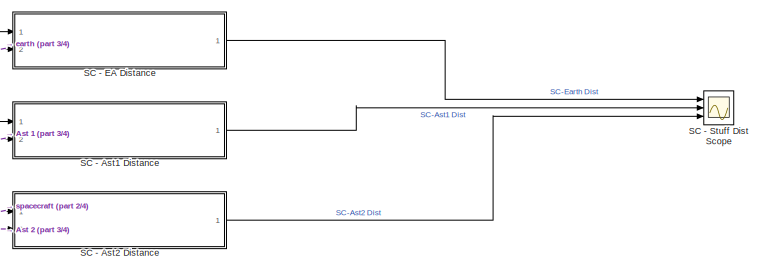
[diagram: root canvas - part 1/4, top right region]
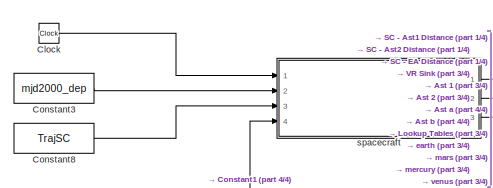
[diagram: root canvas - part 2/4, top left region]
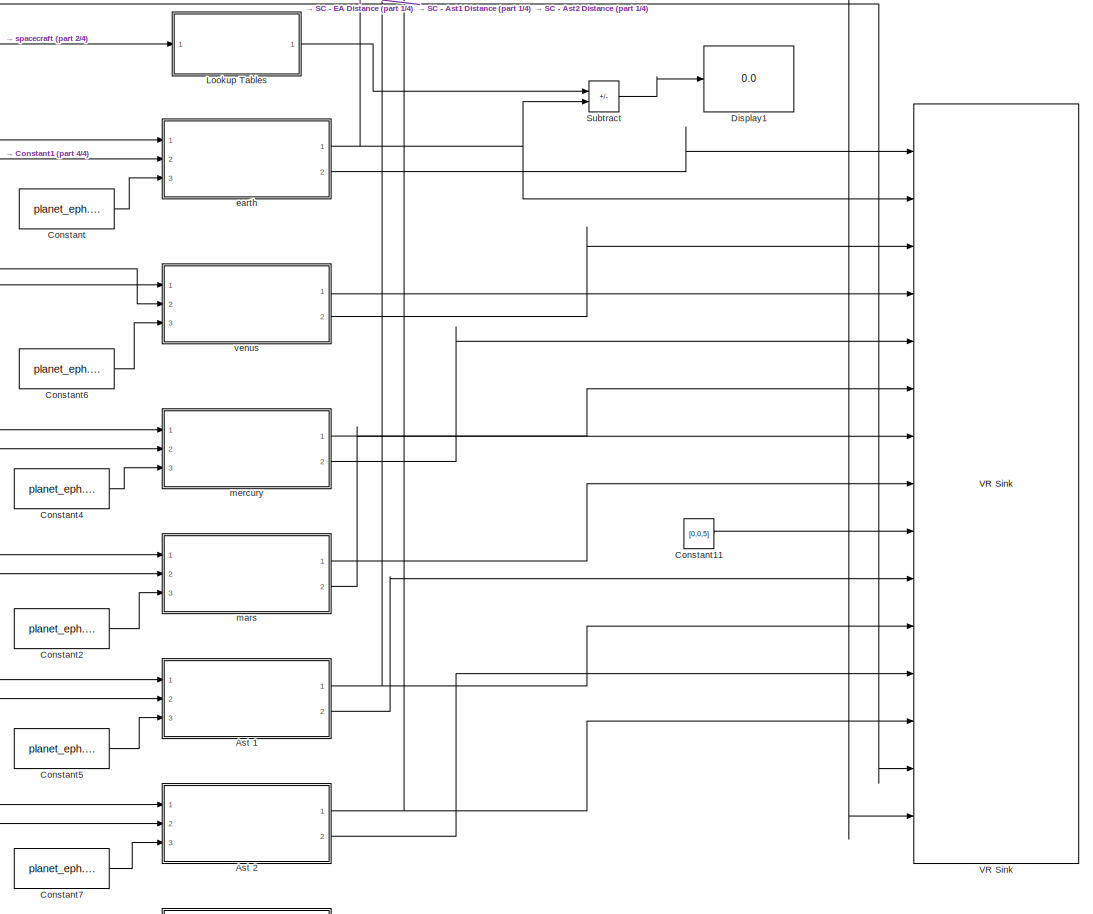
[diagram: root canvas - part 3/4, central region]
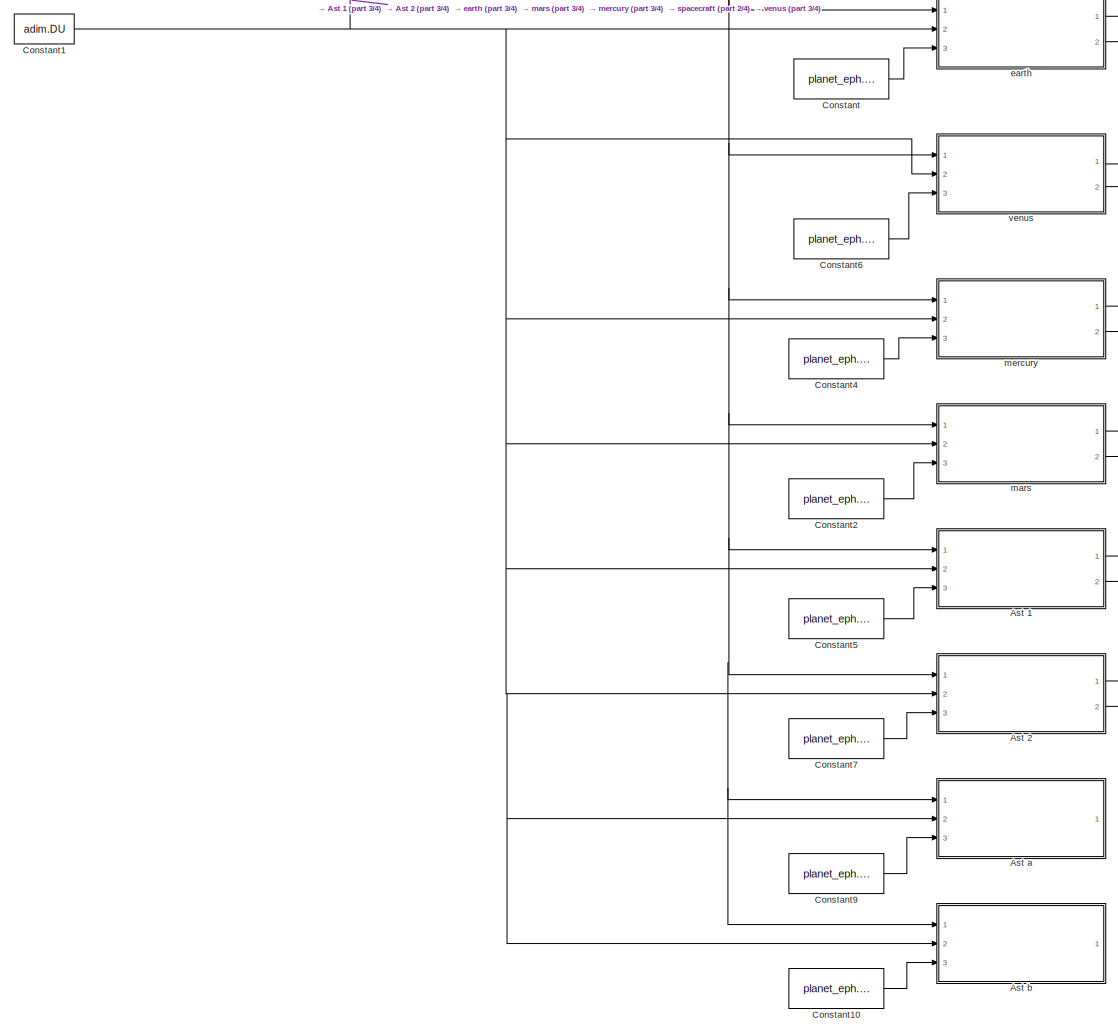
[diagram: root canvas - part 4/4, middle left region]
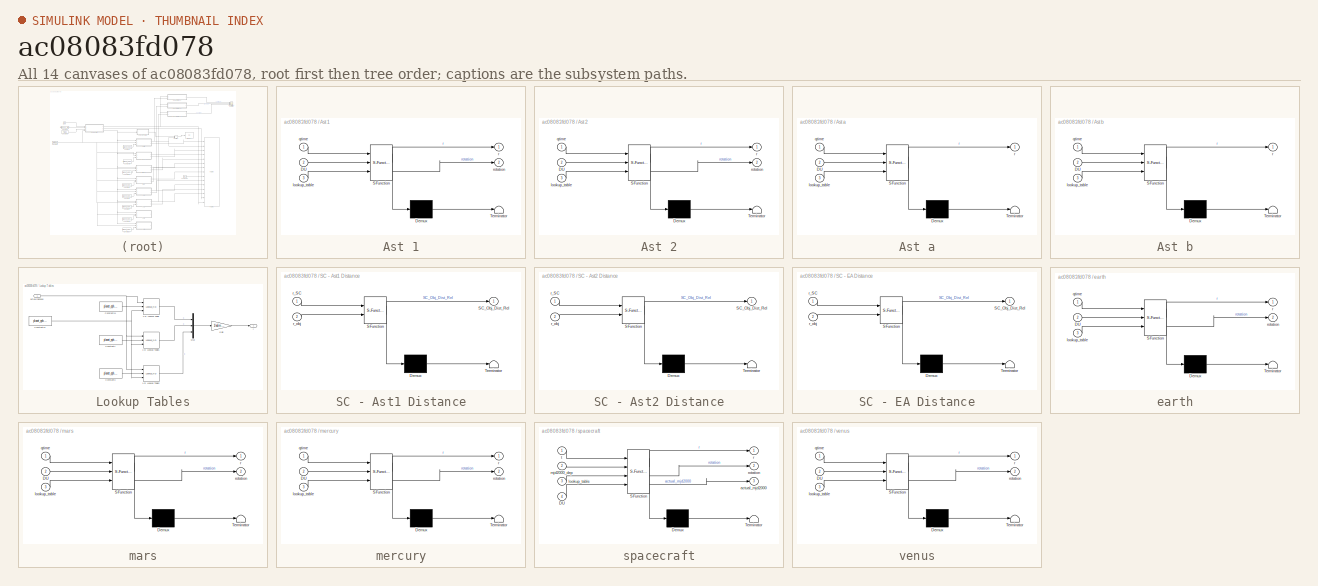
[diagram: thumbnail index - all 14 canvases of the model, root first then tree order]
MODEL slx_ac08083fd078
KIND model
CONFIG AbsTol = auto
CONFIG EnableMultiTasking = off
CONFIG FixedStep = auto
CONFIG MaxStep = auto
CONFIG MinStep = auto
CONFIG RelTol = 1e-3
CONFIG SampleTimeConstraint = Unconstrained
CONFIG SolverName = FixedStepAuto
CONFIG StartTime = 0.0
CONFIG StopTime = sim_time
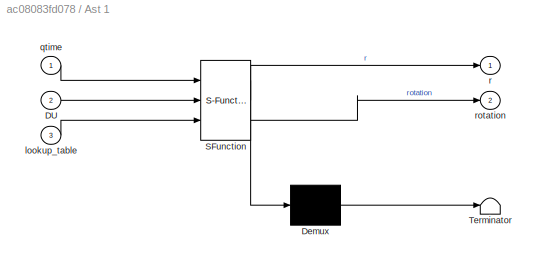
BLOCK [SubSystem] Ast 1
  ErrorFcn = Stateflow.Translate.translate
  PermitHierarchicalResolution = ExplicitOnly
  Ports = [3, 2]
  RequestExecContextInheritance = off
  SFBlockType = MATLAB Function
  TreatAsAtomicUnit = on
BLOCK [Demux] Ast 1/ Demux 
  Outputs = 1
  Ports = [1, 1]
BLOCK [S-Function] Ast 1/ SFunction 
  EnableBusSupport = on
  FunctionName = sf_sfun
  PortCounts = [3 3]
  Ports = [3, 3]
  SFcnIsStateOwnerBlock = off
  SFunctionDeploymentMode = off
  Tag = Stateflow S-Function 6
BLOCK [Terminator] Ast 1/ Terminator 
BLOCK [Inport] Ast 1/DU
  Port = 2
BLOCK [Inport] Ast 1/lookup_table
  Port = 3
BLOCK [Inport] Ast 1/qtime
BLOCK [Outport] Ast 1/r
BLOCK [Outport] Ast 1/rotation
  Port = 2
BLOCK [SubSystem] Ast 2
  ErrorFcn = Stateflow.Translate.translate
  PermitHierarchicalResolution = ExplicitOnly
  Ports = [3, 2]
  RequestExecContextInheritance = off
  SFBlockType = MATLAB Function
  TreatAsAtomicUnit = on
BLOCK [Demux] Ast 2/ Demux 
  Outputs = 1
  Ports = [1, 1]
BLOCK [S-Function] Ast 2/ SFunction 
  EnableBusSupport = on
  FunctionName = sf_sfun
  PortCounts = [3 3]
  Ports = [3, 3]
  SFcnIsStateOwnerBlock = off
  SFunctionDeploymentMode = off
  Tag = Stateflow S-Function 7
BLOCK [Terminator] Ast 2/ Terminator 
BLOCK [Inport] Ast 2/DU
  Port = 2
BLOCK [Inport] Ast 2/lookup_table
  Port = 3
BLOCK [Inport] Ast 2/qtime
BLOCK [Outport] Ast 2/r
BLOCK [Outport] Ast 2/rotation
  Port = 2
BLOCK [SubSystem] Ast a
  Commented = on
  ErrorFcn = Stateflow.Translate.translate
  PermitHierarchicalResolution = ExplicitOnly
  Ports = [3, 1]
  RequestExecContextInheritance = off
  SFBlockType = MATLAB Function
  TreatAsAtomicUnit = on
BLOCK [Demux] Ast a/ Demux 
  Outputs = 1
  Ports = [1, 1]
BLOCK [S-Function] Ast a/ SFunction 
  EnableBusSupport = on
  FunctionName = sf_sfun
  PortCounts = [3 2]
  Ports = [3, 2]
  SFcnIsStateOwnerBlock = off
  SFunctionDeploymentMode = off
  Tag = Stateflow S-Function 8
BLOCK [Terminator] Ast a/ Terminator 
BLOCK [Inport] Ast a/DU
  Port = 2
BLOCK [Inport] Ast a/lookup_table
  Port = 3
BLOCK [Inport] Ast a/qtime
BLOCK [Outport] Ast a/r
BLOCK [SubSystem] Ast b
  Commented = on
  ErrorFcn = Stateflow.Translate.translate
  PermitHierarchicalResolution = ExplicitOnly
  Ports = [3, 1]
  RequestExecContextInheritance = off
  SFBlockType = MATLAB Function
  TreatAsAtomicUnit = on
BLOCK [Demux] Ast b/ Demux 
  Outputs = 1
  Ports = [1, 1]
BLOCK [S-Function] Ast b/ SFunction 
  EnableBusSupport = on
  FunctionName = sf_sfun
  PortCounts = [3 2]
  Ports = [3, 2]
  SFcnIsStateOwnerBlock = off
  SFunctionDeploymentMode = off
  Tag = Stateflow S-Function 9
BLOCK [Terminator] Ast b/ Terminator 
BLOCK [Inport] Ast b/DU
  Port = 2
BLOCK [Inport] Ast b/lookup_table
  Port = 3
BLOCK [Inport] Ast b/qtime
BLOCK [Outport] Ast b/r
BLOCK [Clock] Clock
BLOCK [Constant] Constant
  Value = planet_eph.EA
BLOCK [Constant] Constant1
  Value = adim.DU
BLOCK [Constant] Constant10
  Commented = on
  Value = planet_eph.Ab
BLOCK [Constant] Constant11
  Value = [0,0,5]
BLOCK [Constant] Constant2
  Value = planet_eph.MA
BLOCK [Constant] Constant3
  Value = mjd2000_dep
BLOCK [Constant] Constant4
  Value = planet_eph.ME
BLOCK [Constant] Constant5
  Value = planet_eph.A1
BLOCK [Constant] Constant6
  Value = planet_eph.VE
BLOCK [Constant] Constant7
  Value = planet_eph.A2
BLOCK [Constant] Constant8
  Value = TrajSC
BLOCK [Constant] Constant9
  Commented = on
  Value = planet_eph.Aa
BLOCK [Display] Display1
  Commented = on
  Decimation = 1
  Ports = [1]
BLOCK [SubSystem] Lookup Tables
  Commented = on
  Ports = [1, 1]
  RequestExecContextInheritance = off
BLOCK [Lookup_n-D] Lookup Tables/1-D Lookup Table
  BreakpointsForDimension1 = [7]
  BreakpointsForDimension1Source = Input port
  InputPortMap = u0,p221,p5
  InternalRulePriority = Speed
  NumberOfTableDimensions = 1
  Ports = [3, 1]
  RndMeth = Simplest
  Table = tanh([-5:5])
  TableSource = Input port
BLOCK [Lookup_n-D] Lookup Tables/1-D Lookup Table1
  BreakpointsForDimension1 = [7]
  BreakpointsForDimension1Source = Input port
  InputPortMap = u0,p221,p5
  InternalRulePriority = Speed
  NumberOfTableDimensions = 1
  Ports = [3, 1]
  RndMeth = Simplest
  Table = tanh([-5:5])
  TableSource = Input port
BLOCK [Lookup_n-D] Lookup Tables/1-D Lookup Table2
  BreakpointsForDimension1 = [7]
  BreakpointsForDimension1Source = Input port
  InputPortMap = u0,p221,p5
  InternalRulePriority = Speed
  NumberOfTableDimensions = 1
  Ports = [3, 1]
  RndMeth = Simplest
  Table = tanh([-5:5])
  TableSource = Input port
BLOCK [Constant] Lookup Tables/Constant1
  Value = planet_eph.EA(:,2)
BLOCK [Constant] Lookup Tables/Constant11
  Value = planet_eph.EA(:,1)
BLOCK [Constant] Lookup Tables/Constant12
  Value = planet_eph.EA(:,7)
BLOCK [Constant] Lookup Tables/Constant3
  Value = planet_eph.EA(:,3)
BLOCK [Gain] Lookup Tables/Gain
  Gain = 1/adim.DU
BLOCK [Mux] Lookup Tables/Mux
  DisplayOption = bar
  Inputs = 3
  Ports = [3, 1]
BLOCK [Inport] Lookup Tables/actual mjd2000
BLOCK [Outport] Lookup Tables/r
BLOCK [SubSystem] SC - Ast1 Distance
  ErrorFcn = Stateflow.Translate.translate
  PermitHierarchicalResolution = ExplicitOnly
  Ports = [2, 1]
  RequestExecContextInheritance = off
  SFBlockType = MATLAB Function
  TreatAsAtomicUnit = on
BLOCK [Demux] SC - Ast1 Distance/ Demux 
  Outputs = 1
  Ports = [1, 1]
BLOCK [S-Function] SC - Ast1 Distance/ SFunction 
  EnableBusSupport = on
  FunctionName = sf_sfun
  PortCounts = [2 2]
  Ports = [2, 2]
  SFcnIsStateOwnerBlock = off
  SFunctionDeploymentMode = off
  Tag = Stateflow S-Function 11
BLOCK [Terminator] SC - Ast1 Distance/ Terminator 
BLOCK [Outport] SC - Ast1 Distance/SC_Obj_Dist_Rel
BLOCK [Inport] SC - Ast1 Distance/r_SC
BLOCK [Inport] SC - Ast1 Distance/r_obj
  Port = 2
BLOCK [SubSystem] SC - Ast2 Distance
  ErrorFcn = Stateflow.Translate.translate
  PermitHierarchicalResolution = ExplicitOnly
  Ports = [2, 1]
  RequestExecContextInheritance = off
  SFBlockType = MATLAB Function
  TreatAsAtomicUnit = on
BLOCK [Demux] SC - Ast2 Distance/ Demux 
  Outputs = 1
  Ports = [1, 1]
BLOCK [S-Function] SC - Ast2 Distance/ SFunction 
  EnableBusSupport = on
  FunctionName = sf_sfun
  PortCounts = [2 2]
  Ports = [2, 2]
  SFcnIsStateOwnerBlock = off
  SFunctionDeploymentMode = off
  Tag = Stateflow S-Function 12
BLOCK [Terminator] SC - Ast2 Distance/ Terminator 
BLOCK [Outport] SC - Ast2 Distance/SC_Obj_Dist_Rel
BLOCK [Inport] SC - Ast2 Distance/r_SC
BLOCK [Inport] SC - Ast2 Distance/r_obj
  Port = 2
BLOCK [SubSystem] SC - EA Distance
  ErrorFcn = Stateflow.Translate.translate
  PermitHierarchicalResolution = ExplicitOnly
  Ports = [2, 1]
  RequestExecContextInheritance = off
  SFBlockType = MATLAB Function
  TreatAsAtomicUnit = on
BLOCK [Demux] SC - EA Distance/ Demux 
  Outputs = 1
  Ports = [1, 1]
BLOCK [S-Function] SC - EA Distance/ SFunction 
  EnableBusSupport = on
  FunctionName = sf_sfun
  PortCounts = [2 2]
  Ports = [2, 2]
  SFcnIsStateOwnerBlock = off
  SFunctionDeploymentMode = off
  Tag = Stateflow S-Function 10
BLOCK [Terminator] SC - EA Distance/ Terminator 
BLOCK [Outport] SC - EA Distance/SC_Obj_Dist_Rel
BLOCK [Inport] SC - EA Distance/r_SC
BLOCK [Inport] SC - EA Distance/r_obj
  Port = 2
BLOCK [Scope] SC - Stuff Dist Scope
  Floating = off
  NumInputPorts = 3
  Ports = [3]
  ScopeSpecificationString = Simulink.scopes.TimeScopeBlockCfg('CurrentConfiguration', extmgr.ConfigurationSet(extmgr.Configuration('Core','General UI',true),extmgr.Configuration('Core','Source UI',true),extmgr.Configuration('Sources','WiredSimulink',true),extmgr.Configuration('Visuals','Time Domain',true,'SerializedDisplays',{struct('MinYLimReal','-0.28013','MaxYLimReal','2.52117','YLabelReal','','MinYLimMag','0.00000','MaxY...<+1483ch>
BLOCK [Sum] Subtract
  Commented = on
  IconShape = rectangular
  Inputs = +-
  Ports = [2, 1]
BLOCK [Reference] VR Sink  REF=vrlib/VR Sink
  InstantiateOnLoad = on
  Ports = [15]
  SourceBlock = vrlib/VR Sink
  SourceProductBaseCode = SL
  SourceType = Virtual Reality Sink
BLOCK [SubSystem] earth
  ErrorFcn = Stateflow.Translate.translate
  PermitHierarchicalResolution = ExplicitOnly
  Ports = [3, 2]
  RequestExecContextInheritance = off
  SFBlockType = MATLAB Function
  TreatAsAtomicUnit = on
BLOCK [Demux] earth/ Demux 
  Outputs = 1
  Ports = [1, 1]
BLOCK [S-Function] earth/ SFunction 
  EnableBusSupport = on
  FunctionName = sf_sfun
  PortCounts = [3 3]
  Ports = [3, 3]
  SFcnIsStateOwnerBlock = off
  SFunctionDeploymentMode = off
  Tag = Stateflow S-Function 1
BLOCK [Terminator] earth/ Terminator 
BLOCK [Inport] earth/DU
  Port = 2
BLOCK [Inport] earth/lookup_table
  Port = 3
BLOCK [Inport] earth/qtime
BLOCK [Outport] earth/r
BLOCK [Outport] earth/rotation
  Port = 2
BLOCK [SubSystem] mars
  ErrorFcn = Stateflow.Translate.translate
  PermitHierarchicalResolution = ExplicitOnly
  Ports = [3, 2]
  RequestExecContextInheritance = off
  SFBlockType = MATLAB Function
  TreatAsAtomicUnit = on
BLOCK [Demux] mars/ Demux 
  Outputs = 1
  Ports = [1, 1]
BLOCK [S-Function] mars/ SFunction 
  EnableBusSupport = on
  FunctionName = sf_sfun
  PortCounts = [3 3]
  Ports = [3, 3]
  SFcnIsStateOwnerBlock = off
  SFunctionDeploymentMode = off
  Tag = Stateflow S-Function 2
BLOCK [Terminator] mars/ Terminator 
BLOCK [Inport] mars/DU
  Port = 2
BLOCK [Inport] mars/lookup_table
  Port = 3
BLOCK [Inport] mars/qtime
BLOCK [Outport] mars/r
BLOCK [Outport] mars/rotation
  Port = 2
BLOCK [SubSystem] mercury
  ErrorFcn = Stateflow.Translate.translate
  PermitHierarchicalResolution = ExplicitOnly
  Ports = [3, 2]
  RequestExecContextInheritance = off
  SFBlockType = MATLAB Function
  TreatAsAtomicUnit = on
BLOCK [Demux] mercury/ Demux 
  Outputs = 1
  Ports = [1, 1]
BLOCK [S-Function] mercury/ SFunction 
  EnableBusSupport = on
  FunctionName = sf_sfun
  PortCounts = [3 3]
  Ports = [3, 3]
  SFcnIsStateOwnerBlock = off
  SFunctionDeploymentMode = off
  Tag = Stateflow S-Function 3
BLOCK [Terminator] mercury/ Terminator 
BLOCK [Inport] mercury/DU
  Port = 2
BLOCK [Inport] mercury/lookup_table
  Port = 3
BLOCK [Inport] mercury/qtime
BLOCK [Outport] mercury/r
BLOCK [Outport] mercury/rotation
  Port = 2
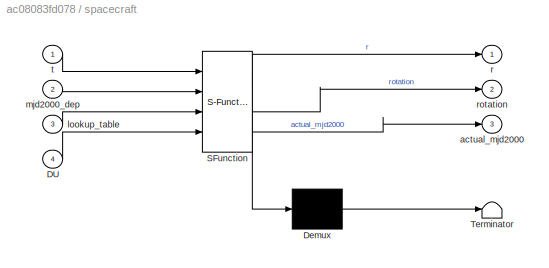
BLOCK [SubSystem] spacecraft
  ErrorFcn = Stateflow.Translate.translate
  PermitHierarchicalResolution = ExplicitOnly
  Ports = [4, 3]
  RequestExecContextInheritance = off
  SFBlockType = MATLAB Function
  TreatAsAtomicUnit = on
BLOCK [Demux] spacecraft/ Demux 
  Outputs = 1
  Ports = [1, 1]
BLOCK [S-Function] spacecraft/ SFunction 
  EnableBusSupport = on
  FunctionName = sf_sfun
  PortCounts = [4 4]
  Ports = [4, 4]
  SFcnIsStateOwnerBlock = off
  SFunctionDeploymentMode = off
  Tag = Stateflow S-Function 5
BLOCK [Terminator] spacecraft/ Terminator 
BLOCK [Inport] spacecraft/DU
  Port = 4
BLOCK [Outport] spacecraft/actual_mjd2000
  Port = 3
BLOCK [Inport] spacecraft/lookup_table
  Port = 3
BLOCK [Inport] spacecraft/mjd2000_dep
  Port = 2
BLOCK [Outport] spacecraft/r
BLOCK [Outport] spacecraft/rotation
  Port = 2
BLOCK [Inport] spacecraft/t
BLOCK [SubSystem] venus
  ErrorFcn = Stateflow.Translate.translate
  PermitHierarchicalResolution = ExplicitOnly
  Ports = [3, 2]
  RequestExecContextInheritance = off
  SFBlockType = MATLAB Function
  TreatAsAtomicUnit = on
BLOCK [Demux] venus/ Demux 
  Outputs = 1
  Ports = [1, 1]
BLOCK [S-Function] venus/ SFunction 
  EnableBusSupport = on
  FunctionName = sf_sfun
  PortCounts = [3 3]
  Ports = [3, 3]
  SFcnIsStateOwnerBlock = off
  SFunctionDeploymentMode = off
  Tag = Stateflow S-Function 4
BLOCK [Terminator] venus/ Terminator 
BLOCK [Inport] venus/DU
  Port = 2
BLOCK [Inport] venus/lookup_table
  Port = 3
BLOCK [Inport] venus/qtime
BLOCK [Outport] venus/r
BLOCK [Outport] venus/rotation
  Port = 2
NET Ast 1:1 -> SC - Ast1 Distance:2, VR Sink:11
LINE Ast 1:2 -> VR Sink:10
NET Ast 2:1 -> SC - Ast2 Distance:2, VR Sink:13
LINE Ast 2:2 -> VR Sink:12
LINE Clock:1 -> spacecraft:1
LINE Constant10:1 -> Ast b:3
LINE Constant11:1 -> VR Sink:9
NET Constant1:1 -> Ast 1:2, Ast 2:2, Ast a:2, Ast b:2, earth:2, mars:2, mercury:2, spacecraft:4, venus:2
LINE Constant2:1 -> mars:3
LINE Constant3:1 -> spacecraft:2
LINE Constant4:1 -> mercury:3
LINE Constant5:1 -> Ast 1:3
LINE Constant6:1 -> venus:3
LINE Constant7:1 -> Ast 2:3
LINE Constant8:1 -> spacecraft:3
LINE Constant9:1 -> Ast a:3
LINE Constant:1 -> earth:3
LINE Lookup Tables/1-D Lookup Table1:1 -> Lookup Tables/Mux:2
LINE Lookup Tables/1-D Lookup Table2:1 -> Lookup Tables/Mux:3
LINE Lookup Tables/1-D Lookup Table:1 -> Lookup Tables/Mux:1
LINE Lookup Tables/Constant11:1 -> Lookup Tables/1-D Lookup Table:2
NET Lookup Tables/Constant12:1 -> Lookup Tables/1-D Lookup Table1:3, Lookup Tables/1-D Lookup Table2:3, Lookup Tables/1-D Lookup Table:3
LINE Lookup Tables/Constant1:1 -> Lookup Tables/1-D Lookup Table1:2
LINE Lookup Tables/Constant3:1 -> Lookup Tables/1-D Lookup Table2:2
LINE Lookup Tables/Gain:1 -> Lookup Tables/r:1
LINE Lookup Tables/Mux:1 -> Lookup Tables/Gain:1
NET Lookup Tables/actual mjd2000:1 -> Lookup Tables/1-D Lookup Table1:1, Lookup Tables/1-D Lookup Table2:1, Lookup Tables/1-D Lookup Table:1
LINE Lookup Tables:1 -> Subtract:1
LINE SC - Ast1 Distance:1 -> SC - Stuff Dist Scope:2
LINE SC - Ast2 Distance:1 -> SC - Stuff Dist Scope:3
LINE SC - EA Distance:1 -> SC - Stuff Dist Scope:1
LINE Subtract:1 -> Display1:1
NET earth:1 -> SC - EA Distance:2, Subtract:2, VR Sink:2
LINE earth:2 -> VR Sink:1
LINE mars:1 -> VR Sink:8
LINE mars:2 -> VR Sink:7
LINE mercury:1 -> VR Sink:6
LINE mercury:2 -> VR Sink:5
NET spacecraft:1 -> SC - Ast1 Distance:1, SC - Ast2 Distance:1, SC - EA Distance:1, VR Sink:15
LINE spacecraft:2 -> VR Sink:14
NET spacecraft:3 -> Ast 1:1, Ast 2:1, Ast a:1, Ast b:1, Lookup Tables:1, earth:1, mars:1, mercury:1, venus:1
LINE venus:1 -> VR Sink:4
LINE venus:2 -> VR Sink:3
note: NET lines group one-source signal fan-out (src -> all destinations, sorted); 1:1 wires keep LINE
CHART SC - EA Distance states=1 transitions=1
  STATE_LABEL 'eML_blk_kernel()'
  STATE_LABEL 'SCRIPT:\nfunction SC_Obj_Dist_Rel = SC_Obj_dist(r_SC, r_obj)\n\nSC_Obj_Dist_Rel = sqrt((r_SC(1) - r_obj(1))^2 + (r_SC(2) - r_obj(2))^2 +(r_SC(3) - r_obj(3))^2 );\n\nend\n'
CHART SC - Ast1 Distance states=1 transitions=1
  STATE_LABEL 'eML_blk_kernel()'
  STATE_LABEL 'SCRIPT:\nfunction SC_Obj_Dist_Rel = SC_Obj_dist(r_SC, r_obj)\n\nSC_Obj_Dist_Rel = sqrt((r_SC(1) - r_obj(1))^2 + (r_SC(2) - r_obj(2))^2 +(r_SC(3) - r_obj(3))^2 );\n\nend\n'
CHART SC - Ast2 Distance states=1 transitions=1
  STATE_LABEL 'eML_blk_kernel()'
  STATE_LABEL 'SCRIPT:\nfunction SC_Obj_Dist_Rel = SC_Obj_dist(r_SC, r_obj)\n\nSC_Obj_Dist_Rel = sqrt((r_SC(1) - r_obj(1))^2 + (r_SC(2) - r_obj(2))^2 +(r_SC(3) - r_obj(3))^2 );\n\nend\n'
CHART earth states=1 transitions=1
  STATE_LABEL 'eML_blk_kernel()'
  STATE_LABEL 'SCRIPT:\nfunction [r, rotation]  = planet_eph(qtime, DU, lookup_table)\n\n% initialise\nr = zeros(3,1);\n% v = zeros(3,1);\n\n% assign\nr(1:3,1) = interp1(lookup_table(:,7),lookup_table(:,1:3),qtime)/DU;\n% v(1:3,1) = interp1(lookup_table(:,7),lookup_table(:,4:6),qtime)/DU*TU;\n\nEarthDay = 23*3600+56*60; % s\n\nw_Earth = 2*pi/EarthDay; % rad/s\n\ntilt_axis = deg2rad(23.4); % rad\nrotation = [sin(tilt_axis);sin(t...<+76ch>'
CHART mars states=1 transitions=1
  STATE_LABEL 'eML_blk_kernel()'
  STATE_LABEL 'SCRIPT:\nfunction [r, rotation]  = planet_eph(qtime, DU, lookup_table)\n\n% initialise\nr = zeros(3,1);\n% v = zeros(3,1);\n\n% assign\nr(1:3,1) = interp1(lookup_table(:,7),lookup_table(:,1:3),qtime)/DU;\n% v(1:3,1) = interp1(lookup_table(:,7),lookup_table(:,4:6),qtime)/DU*TU;\n\nMarsDay = 24*3600+39*60; % s\n\nw_Mars = 2*pi/MarsDay; % rad/s\n\ntilt_axis = deg2rad(25); % rad\nrotation = [sin(tilt_axis);sin(tilt_a...<+70ch>'
CHART mercury states=1 transitions=1
  STATE_LABEL 'eML_blk_kernel()'
  STATE_LABEL 'SCRIPT:\nfunction [r, rotation]  = planet_eph(qtime, DU, lookup_table)\n\n% initialise\nr = zeros(3,1);\n% v = zeros(3,1);\n\n% assign\nr(1:3,1) = interp1(lookup_table(:,7),lookup_table(:,1:3),qtime)/DU;\n% v(1:3,1) = interp1(lookup_table(:,7),lookup_table(:,4:6),qtime)/DU*TU;\n\nMercuryDay = 58*24*3600+15*3600+30*60+30; % s\n\nw_Mercury = 2*pi/MercuryDay; % rad/s\n\ntilt_axis = 0; % rad\nrotation = [sin(tilt_axi...<+86ch>'
CHART venus states=1 transitions=1
  STATE_LABEL 'eML_blk_kernel()'
  STATE_LABEL 'SCRIPT:\nfunction [r, rotation]  = planet_eph(qtime, DU, lookup_table)\n\n% initialise\nr = zeros(3,1);\n% v = zeros(3,1);\n\n% assign\nr(1:3,1) = interp1(lookup_table(:,7),lookup_table(:,1:3),qtime)/DU;\n% v(1:3,1) = interp1(lookup_table(:,7),lookup_table(:,4:6),qtime)/DU*TU;\n\nVenusDay = 243*24*3600+26*60; % s\n\nw_Venus = 2*pi/VenusDay; % rad/s\n\ntilt_axis = deg2rad(177); % rad\nrotation = [sin(tilt_axis);si...<+79ch>'
CHART spacecraft states=1 transitions=1
  STATE_LABEL 'eML_blk_kernel()'
  STATE_LABEL 'SCRIPT:\nfunction [r, rotation, actual_mjd2000]  = sc_trajectory(t, mjd2000_dep, lookup_table, DU)\n\n% t [days]\nactual_mjd2000 = mjd2000_dep + t;\n\n% initialise\nr = zeros(3,1);\n% v = zeros(3,1);\n\n% assign\nr(1:3,1) = interp1(lookup_table(:,4),lookup_table(:,1:3),actual_mjd2000)/DU;\n% v(1:3,1) = interp1(lookup_table(:,7),lookup_table(:,4:6),qtime)/DU*TU;\n\nSC_period = 23*3600+56*60; % s\n\nw_SC = 2*pi/SC_...<+152ch>'
CHART Ast 1 states=1 transitions=1
  STATE_LABEL 'eML_blk_kernel()'
  STATE_LABEL 'SCRIPT:\nfunction [r, rotation]  = planet_eph(qtime, DU, lookup_table)\n\n% initialise\nr = zeros(3,1);\n% v = zeros(3,1);\n\n% assign\nr(1:3,1) = interp1(lookup_table(:,7),lookup_table(:,1:3),qtime)/DU;\n% v(1:3,1) = interp1(lookup_table(:,7),lookup_table(:,4:6),qtime)/DU*TU;\n\nAst1Day = 24*3600; % s --------- set\n\nw_Ast1 = 2*pi/Ast1Day; % rad/s\n\ntilt_axis = deg2rad(0); % rad ---------- set\nrotation = [sin...<+92ch>'
CHART Ast 2 states=1 transitions=1
  STATE_LABEL 'eML_blk_kernel()'
  STATE_LABEL 'SCRIPT:\nfunction [r, rotation]  = planet_eph(qtime, DU, lookup_table)\n\n% initialise\nr = zeros(3,1);\n% v = zeros(3,1);\n\n% assign\nr(1:3,1) = interp1(lookup_table(:,7),lookup_table(:,1:3),qtime)/DU;\n% v(1:3,1) = interp1(lookup_table(:,7),lookup_table(:,4:6),qtime)/DU*TU;\n\nAst2Day = 24*3600; % s --------- set\n\nw_Ast2 = 2*pi/Ast2Day; % rad/s\n\ntilt_axis = deg2rad(0); % rad ---------- set\nrotation = [sin...<+92ch>'
CHART Ast a states=1 transitions=1
  STATE_LABEL 'eML_blk_kernel()'
  STATE_LABEL 'SCRIPT:\nfunction r  = planet_eph(qtime, DU, lookup_table)\n\n% initialise\nr = zeros(3,1);\n% v = zeros(3,1);\n\n% assign\nr(1:3,1) = interp1(lookup_table(:,7),lookup_table(:,1:3),qtime)/DU;\n% v(1:3,1) = interp1(lookup_table(:,7),lookup_table(:,4:6),qtime)/DU*TU;\n\nend\n'
CHART Ast b states=1 transitions=1
  STATE_LABEL 'eML_blk_kernel()'
  STATE_LABEL 'SCRIPT:\nfunction r  = planet_eph(qtime, DU, lookup_table)\n\n% initialise\nr = zeros(3,1);\n% v = zeros(3,1);\n\n% assign\nr(1:3,1) = interp1(lookup_table(:,7),lookup_table(:,1:3),qtime)/DU;\n% v(1:3,1) = interp1(lookup_table(:,7),lookup_table(:,4:6),qtime)/DU*TU;\n\nend\n'
CHART  states=0 transitions=0
CHART  states=0 transitions=0
CHART  states=0 transitions=0
CHART  states=0 transitions=0
CHART  states=0 transitions=0
CHART  states=0 transitions=0
CHART  states=0 transitions=0
CHART  states=0 transitions=0
CHART  states=0 transitions=0
CHART  states=0 transitions=0
CHART  states=0 transitions=0
CHART  states=0 transitions=0
